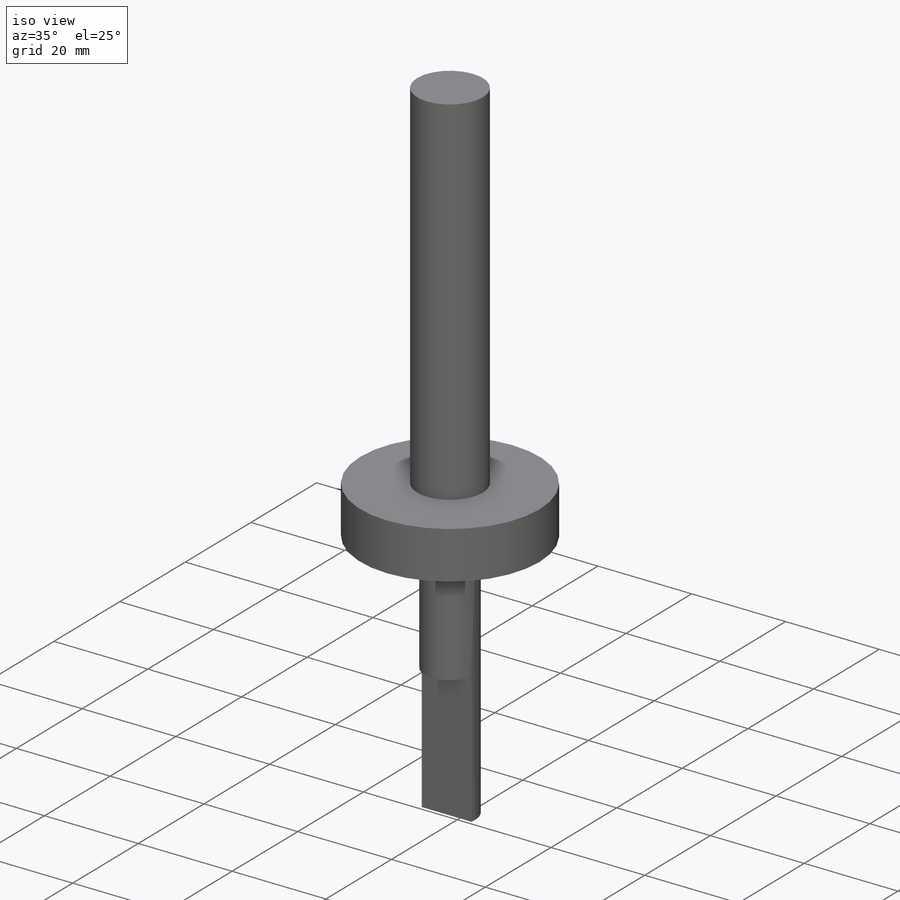
[diagram: iso view]
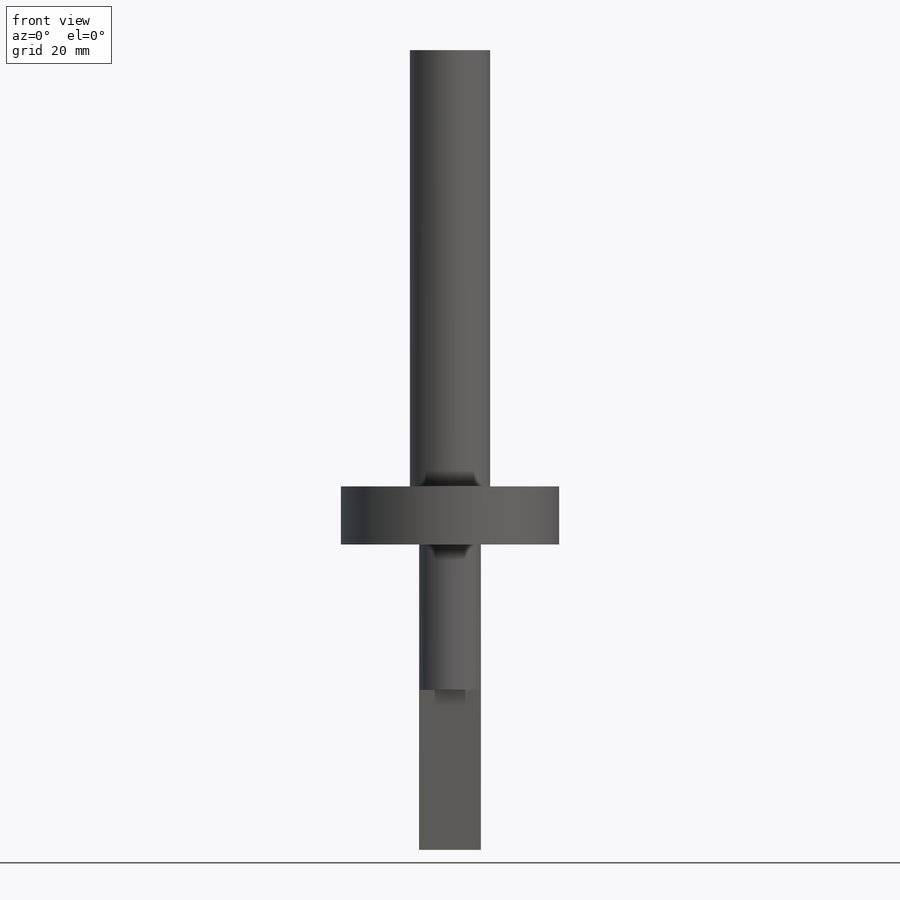
[diagram: front view]
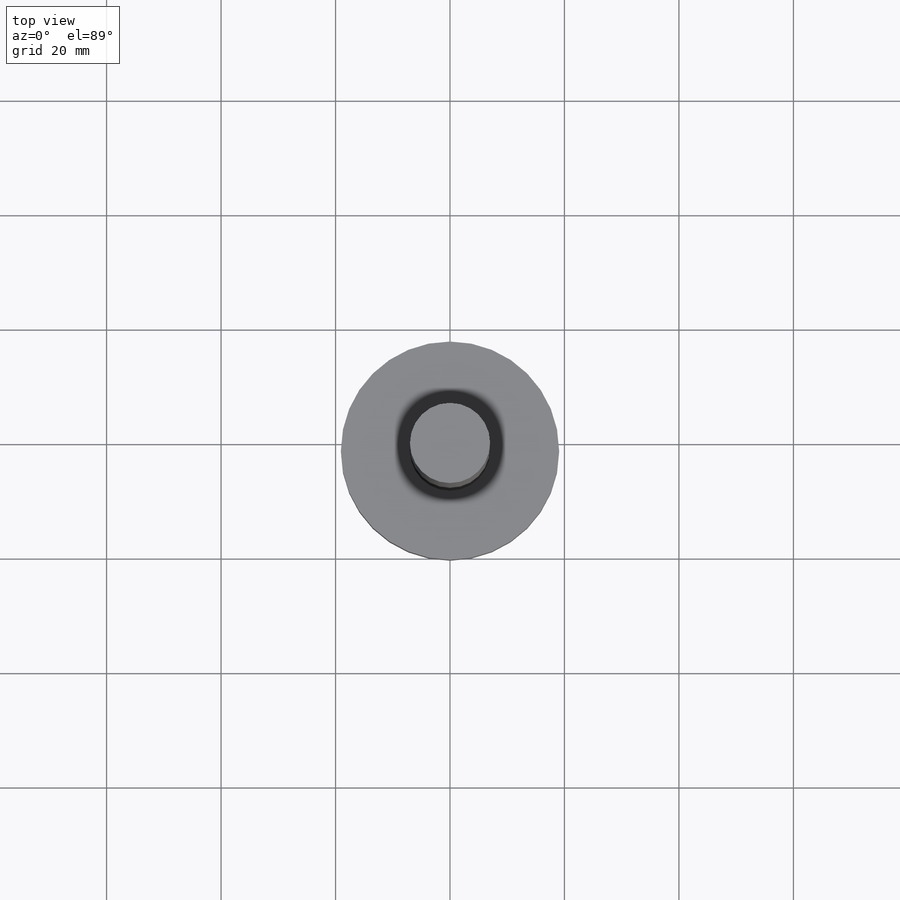
[diagram: top view]
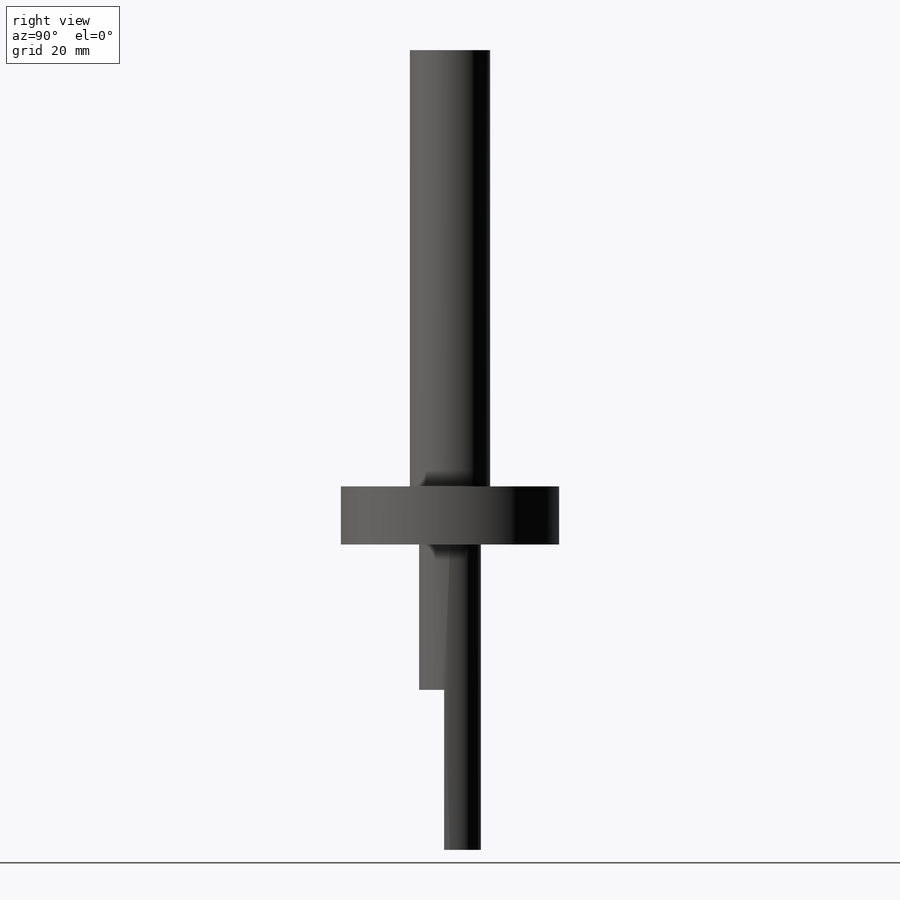
[diagram: right view]
SOLIDWORKS PART (.sldprt)
format: sldprt  version: not decoded by parser v0  size: 130,048 bytes
history: native  units: mm
features: sketch x4, extrude x4, material x1 (+13 scaffold rows collapsed)
feature tree (22):
  scaffold x13  (default folders/planes/origin — collapsed)
  material  "Material <not specified>"
  sketch  "Sketch1"  dims[D2=5.4mm D1=10.6mm]
  extrude  "Boss-Extrude1"  Depth=27.94mm
  sketch  "Sketch4"
  extrude  "Boss-Extrude3"  Depth=25.4mm
  sketch  "Sketch5"  dims[D1=~21.605045mm]
  extrude  "Boss-Extrude4"  Depth=10.16mm
  sketch  "Sketch6"  dims[D1=~19.198795mm]
  extrude  "Boss-Extrude5"  Depth=76.2mm
decode coverage: 7 of 8 modeling features carry decoded parameters
note: ~ marks probable driven/reference dimensions
note: suppression state not decoded; provenance and decode notes live in map.json
